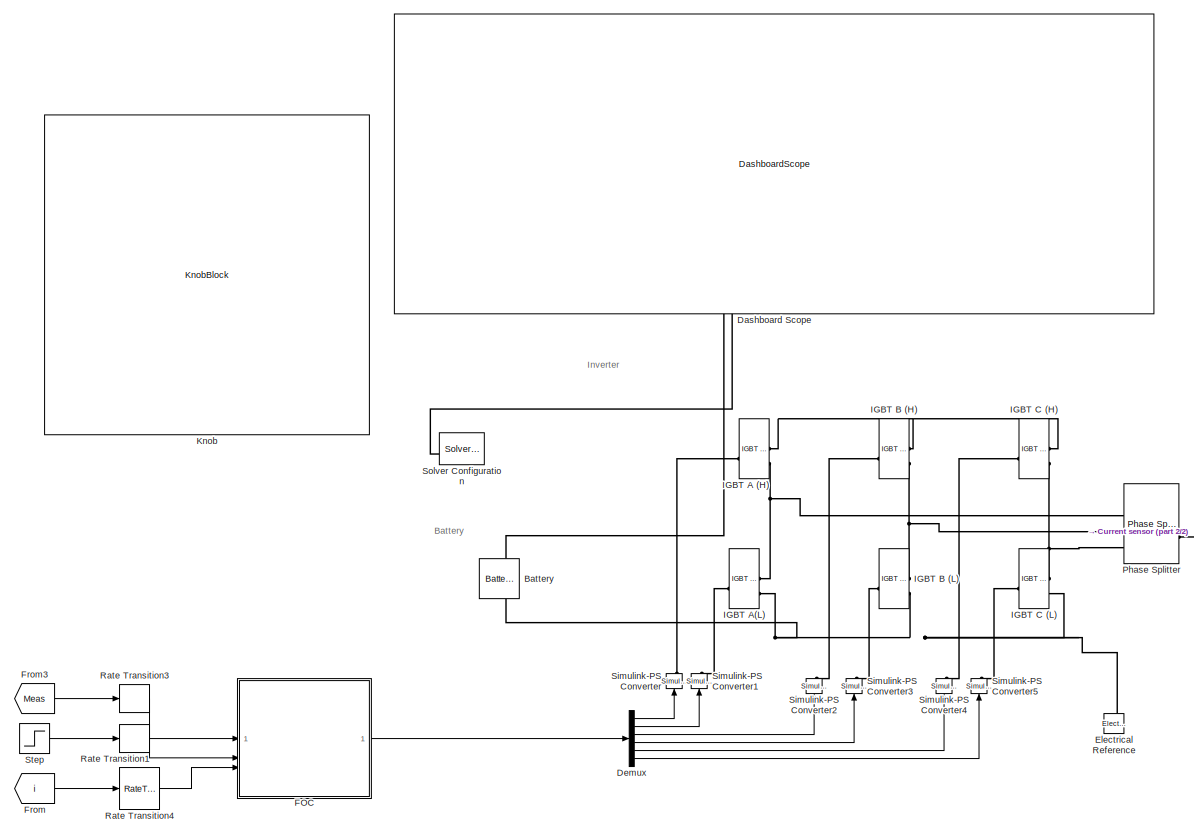
[diagram: root canvas - part 1/2, left side, full height]
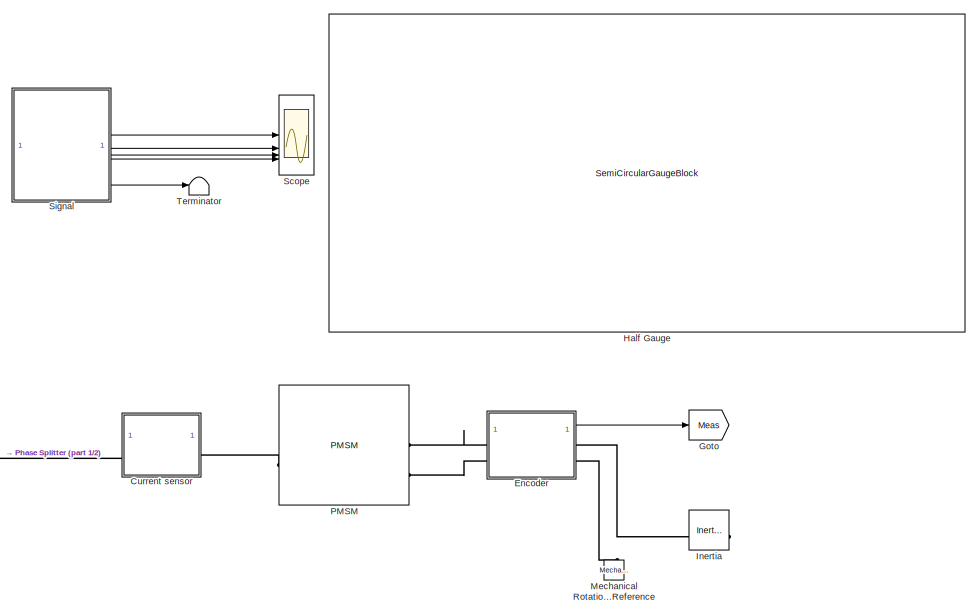
[diagram: root canvas - part 2/2, middle right region]
MODEL slx_708d27771ab4
KIND model
CONFIG AbsTol = auto
CONFIG EnableMultiTasking = off
CONFIG FixedStep = auto
CONFIG MaxStep = auto
CONFIG MinStep = auto
CONFIG RelTol = 1e-3
CONFIG SampleTimeConstraint = Unconstrained
CONFIG SolverName = VariableStepAuto
CONFIG StartTime = 0.0
CONFIG StopTime = inf
BLOCK [Reference] Battery  REF=batteryecm_lib/Battery
  LibrarySourceBlock = ee_lib/Sources/Battery
  NameLocation = right
  SourceBlock = batteryecm_lib/Battery
  SourceType = Battery
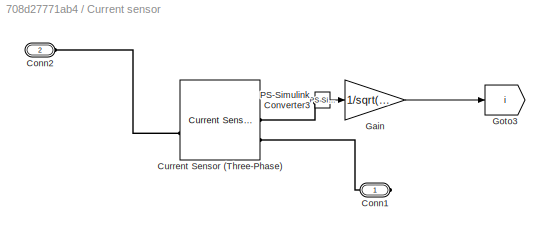
BLOCK [SubSystem] Current sensor
BLOCK [PMIOPort] Current sensor/Conn1
  Side = Right
BLOCK [PMIOPort] Current sensor/Conn2
  Port = 2
  Side = Left
BLOCK [Reference] Current sensor/Current Sensor (Three-Phase)  REF=ee_lib/Sensors &
Transducers/Current Sensor
(Three-Phase)
  SourceBlock = ee_lib/Sensors &\nTransducers/Current Sensor\n(Three-Phase)
  SourceType = Current Sensor\n(Three-Phase)
BLOCK [Gain] Current sensor/Gain
  Gain = 1/sqrt(3)
BLOCK [Goto] Current sensor/Goto3
  GotoTag = i
  TagVisibility = global
BLOCK [Reference] Current sensor/PS-Simulink Converter3  REF=nesl_utility/PS-Simulink
Converter
  SourceBlock = nesl_utility/PS-Simulink\nConverter
  SourceType = PS-Simulink\nConverter
BLOCK [DashboardScope] Dashboard Scope
BLOCK [Demux] Demux
  Outputs = 6
BLOCK [Reference] Electrical Reference  REF=fl_lib/Electrical/Electrical Elements/Electrical Reference
  NameLocation = right
  SourceBlock = fl_lib/Electrical/Electrical Elements/Electrical Reference
  SourceType = Electrical Reference
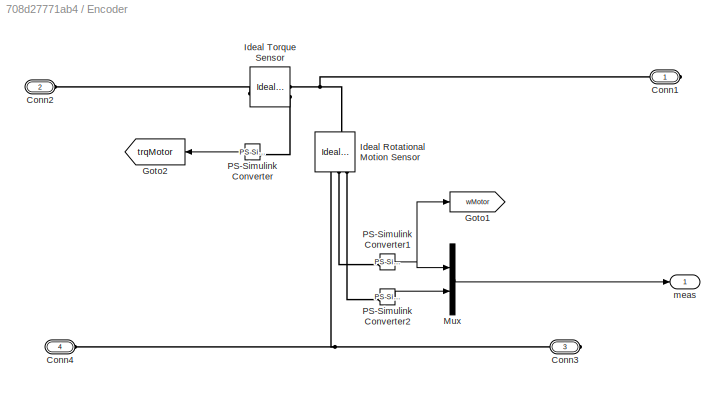
BLOCK [SubSystem] Encoder
BLOCK [PMIOPort] Encoder/Conn1
  Side = Right
BLOCK [PMIOPort] Encoder/Conn2
  Port = 2
  Side = Left
BLOCK [PMIOPort] Encoder/Conn3
  Port = 3
  Side = Right
BLOCK [PMIOPort] Encoder/Conn4
  Port = 4
  Side = Left
BLOCK [Goto] Encoder/Goto1
  GotoTag = wMotor
  TagVisibility = global
BLOCK [Goto] Encoder/Goto2
  GotoTag = trqMotor
  TagVisibility = global
BLOCK [Reference] Encoder/Ideal Rotational Motion Sensor  REF=fl_lib/Mechanical/Mechanical Sensors/Ideal Rotational
Motion Sensor
  NameLocation = left
  SourceBlock = fl_lib/Mechanical/Mechanical Sensors/Ideal Rotational\nMotion Sensor
  SourceType = Ideal Rotational\nMotion Sensor
BLOCK [Reference] Encoder/Ideal Torque Sensor  REF=fl_lib/Mechanical/Mechanical Sensors/Ideal Torque Sensor
  SourceBlock = fl_lib/Mechanical/Mechanical Sensors/Ideal Torque Sensor
  SourceType = Ideal Torque Sensor
BLOCK [Mux] Encoder/Mux
  DisplayOption = bar
  Inputs = 2
BLOCK [Reference] Encoder/PS-Simulink Converter  REF=nesl_utility/PS-Simulink
Converter
  SourceBlock = nesl_utility/PS-Simulink\nConverter
  SourceType = PS-Simulink\nConverter
BLOCK [Reference] Encoder/PS-Simulink Converter1  REF=nesl_utility/PS-Simulink
Converter
  SourceBlock = nesl_utility/PS-Simulink\nConverter
  SourceType = PS-Simulink\nConverter
BLOCK [Reference] Encoder/PS-Simulink Converter2  REF=nesl_utility/PS-Simulink
Converter
  SourceBlock = nesl_utility/PS-Simulink\nConverter
  SourceType = PS-Simulink\nConverter
BLOCK [Outport] Encoder/meas
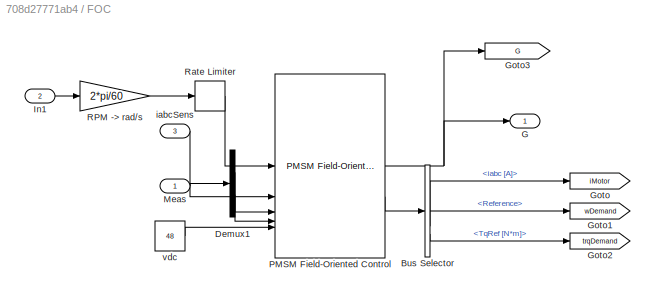
BLOCK [SubSystem] FOC
BLOCK [BusSelector] FOC/Bus Selector
  OutputSignals = iabc [A],Reference,TqRef [N*m]
BLOCK [Demux] FOC/Demux1
  Outputs = 2
BLOCK [Outport] FOC/G
BLOCK [Goto] FOC/Goto
  GotoTag = iMotor
  TagVisibility = global
BLOCK [Goto] FOC/Goto1
  GotoTag = wDemand
  TagVisibility = global
BLOCK [Goto] FOC/Goto2
  GotoTag = trqDemand
  TagVisibility = global
BLOCK [Goto] FOC/Goto3
  GotoTag = G
  TagVisibility = global
BLOCK [Inport] FOC/In1
  Port = 2
BLOCK [Inport] FOC/Meas
BLOCK [Reference] FOC/PMSM Field-Oriented Control  REF=eePmsmFieldOrientedControl/PMSM Field-Oriented
Control
  LibrarySourceBlock = ee_sl_lib/PMSM Control/PMSM Field-Oriented\nControl
  SourceBlock = eePmsmFieldOrientedControl/PMSM Field-Oriented\nControl
  SourceType = PMSM Field-Oriented Control
BLOCK [Gain] FOC/RPM -> rad//s
  Gain = 2*pi/60
  NameLocation = top
BLOCK [RateLimiter] FOC/Rate Limiter
  FallingSlewLimit = -Tmax/J
  RisingSlewLimit = Tmax/J
  SampleTimeMode = inherited
BLOCK [Inport] FOC/iabcSens
  Port = 3
BLOCK [Constant] FOC/vdc
  Value = 48
BLOCK [From] From
  GotoTag = i
  TagVisibility = global
BLOCK [From] From3
  GotoTag = Meas
  TagVisibility = global
BLOCK [Goto] Goto
  GotoTag = Meas
  TagVisibility = global
BLOCK [SemiCircularGaugeBlock] Half Gauge
  ScaleMax = 2500
  TickInterval = 250
BLOCK [Reference] IGBT A (H)  REF=ee_lib/Semiconductors &
Converters/IGBT
(Ideal,
Switching)
  SourceBlock = ee_lib/Semiconductors &\nConverters/IGBT\n(Ideal,\nSwitching)
  SourceType = IGBT\n(Ideal,\nSwitching)
BLOCK [Reference] IGBT A(L)  REF=ee_lib/Semiconductors &
Converters/IGBT
(Ideal,
Switching)
  SourceBlock = ee_lib/Semiconductors &\nConverters/IGBT\n(Ideal,\nSwitching)
  SourceType = IGBT\n(Ideal,\nSwitching)
BLOCK [Reference] IGBT B (H)  REF=ee_lib/Semiconductors &
Converters/IGBT
(Ideal,
Switching)
  SourceBlock = ee_lib/Semiconductors &\nConverters/IGBT\n(Ideal,\nSwitching)
  SourceType = IGBT\n(Ideal,\nSwitching)
BLOCK [Reference] IGBT B (L)  REF=ee_lib/Semiconductors &
Converters/IGBT
(Ideal,
Switching)
  SourceBlock = ee_lib/Semiconductors &\nConverters/IGBT\n(Ideal,\nSwitching)
  SourceType = IGBT\n(Ideal,\nSwitching)
BLOCK [Reference] IGBT C (H)  REF=ee_lib/Semiconductors &
Converters/IGBT
(Ideal,
Switching)
  SourceBlock = ee_lib/Semiconductors &\nConverters/IGBT\n(Ideal,\nSwitching)
  SourceType = IGBT\n(Ideal,\nSwitching)
BLOCK [Reference] IGBT C (L)  REF=ee_lib/Semiconductors &
Converters/IGBT
(Ideal,
Switching)
  SourceBlock = ee_lib/Semiconductors &\nConverters/IGBT\n(Ideal,\nSwitching)
  SourceType = IGBT\n(Ideal,\nSwitching)
BLOCK [Reference] Inertia  REF=fl_lib/Mechanical/Rotational Elements/Inertia
  NameLocation = top
  SourceBlock = fl_lib/Mechanical/Rotational Elements/Inertia
  SourceType = Inertia
BLOCK [KnobBlock] Knob
  ScaleMax = 2500
BLOCK [Reference] Mechanical Rotational Reference  REF=fl_lib/Mechanical/Rotational Elements/Mechanical
Rotational Reference
  NameLocation = right
  SourceBlock = fl_lib/Mechanical/Rotational Elements/Mechanical\nRotational Reference
  SourceType = Mechanical\nRotational Reference
BLOCK [Reference] PMSM  REF=ee_lib/Electromechanical/Permanent Magnet/PMSM
  SourceBlock = ee_lib/Electromechanical/Permanent Magnet/PMSM
  SourceType = PMSM
BLOCK [Reference] Phase Splitter  REF=ee_lib/Connectors &
References/Phase Splitter
  SourceBlock = ee_lib/Connectors &\nReferences/Phase Splitter
  SourceType = Phase Splitter
BLOCK [RateTransition] Rate Transition1
  OutPortSampleTime = Tsc
BLOCK [RateTransition] Rate Transition3
  OutPortSampleTime = Tsc
BLOCK [RateTransition] Rate Transition4
  OutPortSampleTime = Tsc
BLOCK [Scope] Scope
  Floating = off
  NumInputPorts = 4
  ScopeSpecificationString = Simulink.scopes.TimeScopeBlockCfg('CurrentConfiguration', extmgr.ConfigurationSet(extmgr.Configuration('Core','General UI',true),extmgr.Configuration('Core','Source UI',true),extmgr.Configuration('Sources','WiredSimulink',true),extmgr.Configuration('Visuals','Time Domain',true,'SerializedDisplays',{struct('MinYLimReal','-14.42115','MaxYLimReal','46.60235','YLabelReal','','MinYLimMag','0.00000','Ma...<+3756ch>
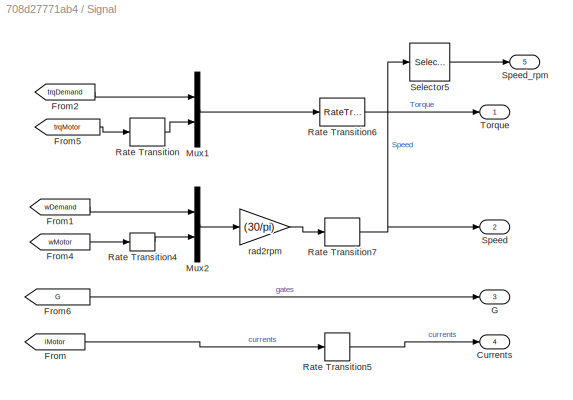
BLOCK [SubSystem] Signal 
BLOCK [Outport] Signal /Currents
  Port = 4
BLOCK [From] Signal /From
  GotoTag = iMotor
  TagVisibility = global
BLOCK [From] Signal /From1
  GotoTag = wDemand
  TagVisibility = global
BLOCK [From] Signal /From2
  GotoTag = trqDemand
  TagVisibility = global
BLOCK [From] Signal /From4
  GotoTag = wMotor
  TagVisibility = global
BLOCK [From] Signal /From5
  GotoTag = trqMotor
  NameLocation = top
  TagVisibility = global
BLOCK [From] Signal /From6
  GotoTag = G
  TagVisibility = global
BLOCK [Outport] Signal /G
  Port = 3
BLOCK [Mux] Signal /Mux1
  DisplayOption = bar
  Inputs = 2
BLOCK [Mux] Signal /Mux2
  DisplayOption = bar
  Inputs = 2
BLOCK [RateTransition] Signal /Rate Transition
  OutPortSampleTime = Tsc
BLOCK [RateTransition] Signal /Rate Transition4
  OutPortSampleTime = Tsc
BLOCK [RateTransition] Signal /Rate Transition5
  OutPortSampleTime = Ts
BLOCK [RateTransition] Signal /Rate Transition6
  OutPortSampleTime = Ts
BLOCK [RateTransition] Signal /Rate Transition7
  OutPortSampleTime = Ts
BLOCK [Selector] Signal /Selector5
  IndexOptions = Index vector (dialog)
  Indices = 2
  InputPortWidth = 2
  OutputSizes = 1
BLOCK [Outport] Signal /Speed
  Port = 2
BLOCK [Outport] Signal /Speed_rpm
  Port = 5
BLOCK [Outport] Signal /Torque
BLOCK [Gain] Signal /rad2rpm
  Gain = (30/pi)
BLOCK [Reference] Simulink-PS Converter  REF=nesl_utility/Simulink-PS
Converter
  NameLocation = right
  SourceBlock = nesl_utility/Simulink-PS\nConverter
  SourceType = Simulink-PS\nConverter
BLOCK [Reference] Simulink-PS Converter1  REF=nesl_utility/Simulink-PS
Converter
  NameLocation = right
  SourceBlock = nesl_utility/Simulink-PS\nConverter
  SourceType = Simulink-PS\nConverter
BLOCK [Reference] Simulink-PS Converter2  REF=nesl_utility/Simulink-PS
Converter
  SourceBlock = nesl_utility/Simulink-PS\nConverter
  SourceType = Simulink-PS\nConverter
BLOCK [Reference] Simulink-PS Converter3  REF=nesl_utility/Simulink-PS
Converter
  SourceBlock = nesl_utility/Simulink-PS\nConverter
  SourceType = Simulink-PS\nConverter
BLOCK [Reference] Simulink-PS Converter4  REF=nesl_utility/Simulink-PS
Converter
  SourceBlock = nesl_utility/Simulink-PS\nConverter
  SourceType = Simulink-PS\nConverter
BLOCK [Reference] Simulink-PS Converter5  REF=nesl_utility/Simulink-PS
Converter
  SourceBlock = nesl_utility/Simulink-PS\nConverter
  SourceType = Simulink-PS\nConverter
BLOCK [Reference] Solver Configuration  REF=nesl_utility/Solver
Configuration
  SourceBlock = nesl_utility/Solver\nConfiguration
  SourceType = Solver\nConfiguration
BLOCK [Step] Step
  After = 983.4977467854818
  SampleTime = 0
  Time = .1
BLOCK [Terminator] Terminator
ANNOTATION (root): Battery
ANNOTATION (root): Inverter
LINE Current sensor/Gain:1 -> Current sensor/Goto3:1
LINE Current sensor/PS-Simulink Converter3:1 -> Current sensor/Gain:1
LINE Demux:1 -> Simulink-PS Converter:1
LINE Demux:2 -> Simulink-PS Converter1:1
LINE Demux:3 -> Simulink-PS Converter2:1
LINE Demux:4 -> Simulink-PS Converter3:1
LINE Demux:5 -> Simulink-PS Converter4:1
LINE Demux:6 -> Simulink-PS Converter5:1
LINE Encoder/Mux:1 -> Encoder/meas:1
NET Encoder/PS-Simulink Converter1:1 -> Encoder/Goto1:1, Encoder/Mux:1
LINE Encoder/PS-Simulink Converter2:1 -> Encoder/Mux:2
LINE Encoder/PS-Simulink Converter:1 -> Encoder/Goto2:1
LINE Encoder:1 -> Goto:1
LINE FOC/Bus Selector:1 -> FOC/Goto:1
LINE FOC/Bus Selector:2 -> FOC/Goto1:1
LINE FOC/Bus Selector:3 -> FOC/Goto2:1
LINE FOC/Demux1:1 -> FOC/PMSM Field-Oriented Control:3
LINE FOC/Demux1:2 -> FOC/PMSM Field-Oriented Control:4
LINE FOC/In1:1 -> FOC/RPM -> rad//s:1
LINE FOC/Meas:1 -> FOC/Demux1:1
NET FOC/PMSM Field-Oriented Control:1 -> FOC/G:1, FOC/Goto3:1
LINE FOC/PMSM Field-Oriented Control:2 -> FOC/Bus Selector:1
LINE FOC/RPM -> rad//s:1 -> FOC/Rate Limiter:1
LINE FOC/Rate Limiter:1 -> FOC/PMSM Field-Oriented Control:1
LINE FOC/iabcSens:1 -> FOC/PMSM Field-Oriented Control:2
LINE FOC/vdc:1 -> FOC/PMSM Field-Oriented Control:5
LINE FOC:1 -> Demux:1
LINE From3:1 -> Rate Transition3:1
LINE From:1 -> Rate Transition4:1
LINE Rate Transition1:1 -> FOC:2
LINE Rate Transition3:1 -> FOC:1
LINE Rate Transition4:1 -> FOC:3
LINE Signal /From1:1 -> Signal /Mux2:1
LINE Signal /From2:1 -> Signal /Mux1:1
LINE Signal /From4:1 -> Signal /Rate Transition4:1
LINE Signal /From5:1 -> Signal /Rate Transition:1
LINE Signal /From6:1 -> Signal /G:1
LINE Signal /From:1 -> Signal /Rate Transition5:1
LINE Signal /Mux1:1 -> Signal /Rate Transition6:1
LINE Signal /Mux2:1 -> Signal /rad2rpm:1
LINE Signal /Rate Transition4:1 -> Signal /Mux2:2
LINE Signal /Rate Transition5:1 -> Signal /Currents:1
LINE Signal /Rate Transition6:1 -> Signal /Torque:1
NET Signal /Rate Transition7:1 -> Signal /Selector5:1, Signal /Speed:1
LINE Signal /Rate Transition:1 -> Signal /Mux1:2
LINE Signal /Selector5:1 -> Signal /Speed_rpm:1
LINE Signal /rad2rpm:1 -> Signal /Rate Transition7:1
LINE Signal :1 -> Scope:1
LINE Signal :2 -> Scope:2
LINE Signal :3 -> Scope:3
LINE Signal :4 -> Scope:4
LINE Signal :5 -> Terminator:1
LINE Step:1 -> Rate Transition1:1
PNET net1: Battery:LConn1 -- IGBT A (H):RConn1 -- IGBT B (H):RConn1 -- IGBT C (H):RConn1 -- Solver Configuration:RConn1
PNET net2: Battery:RConn1 -- Electrical Reference:LConn1 -- IGBT A(L):RConn2 -- IGBT B (L):RConn2 -- IGBT C (L):RConn2
PLINE Current sensor/Conn1:RConn1 -- Current sensor/Current Sensor (Three-Phase):RConn2
PLINE Current sensor/Conn2:RConn1 -- Current sensor/Current Sensor (Three-Phase):LConn1
PLINE Current sensor/Current Sensor (Three-Phase):RConn1 -- Current sensor/PS-Simulink Converter3:LConn1
PLINE Current sensor:LConn1 -- Phase Splitter:LConn1
PLINE Current sensor:RConn1 -- PMSM:LConn1
PNET net3: Encoder/Conn1:RConn1 -- Encoder/Ideal Rotational Motion Sensor:LConn1 -- Encoder/Ideal Torque Sensor:RConn1
PLINE Encoder/Conn2:RConn1 -- Encoder/Ideal Torque Sensor:LConn1
PNET net4: Encoder/Conn3:RConn1 -- Encoder/Conn4:RConn1 -- Encoder/Ideal Rotational Motion Sensor:RConn1
PLINE Encoder/Ideal Rotational Motion Sensor:RConn2 -- Encoder/PS-Simulink Converter1:LConn1
PLINE Encoder/Ideal Rotational Motion Sensor:RConn3 -- Encoder/PS-Simulink Converter2:LConn1
PLINE Encoder/Ideal Torque Sensor:RConn2 -- Encoder/PS-Simulink Converter:LConn1
PLINE Encoder:LConn1 -- PMSM:RConn1
PLINE Encoder:LConn2 -- PMSM:RConn2
PLINE Encoder:RConn1 -- Inertia:LConn1
PLINE Encoder:RConn2 -- Mechanical Rotational Reference:LConn1
PLINE IGBT A (H):LConn1 -- Simulink-PS Converter:RConn1
PNET net5: IGBT A (H):RConn2 -- IGBT A(L):RConn1 -- Phase Splitter:RConn1
PLINE IGBT A(L):LConn1 -- Simulink-PS Converter1:RConn1
PLINE IGBT B (H):LConn1 -- Simulink-PS Converter2:RConn1
PNET net6: IGBT B (H):RConn2 -- IGBT B (L):RConn1 -- Phase Splitter:RConn2
PLINE IGBT B (L):LConn1 -- Simulink-PS Converter3:RConn1
PLINE IGBT C (H):LConn1 -- Simulink-PS Converter4:RConn1
PNET net7: IGBT C (H):RConn2 -- IGBT C (L):RConn1 -- Phase Splitter:RConn3
PLINE IGBT C (L):LConn1 -- Simulink-PS Converter5:RConn1
note: NET lines group one-source signal fan-out (src -> all destinations, sorted); 1:1 wires keep LINE; PNET lines group multi-terminal physical nets as a canonical sorted terminal list (undirected conserving connections); 2-terminal nets keep the pairwise PLINE form
